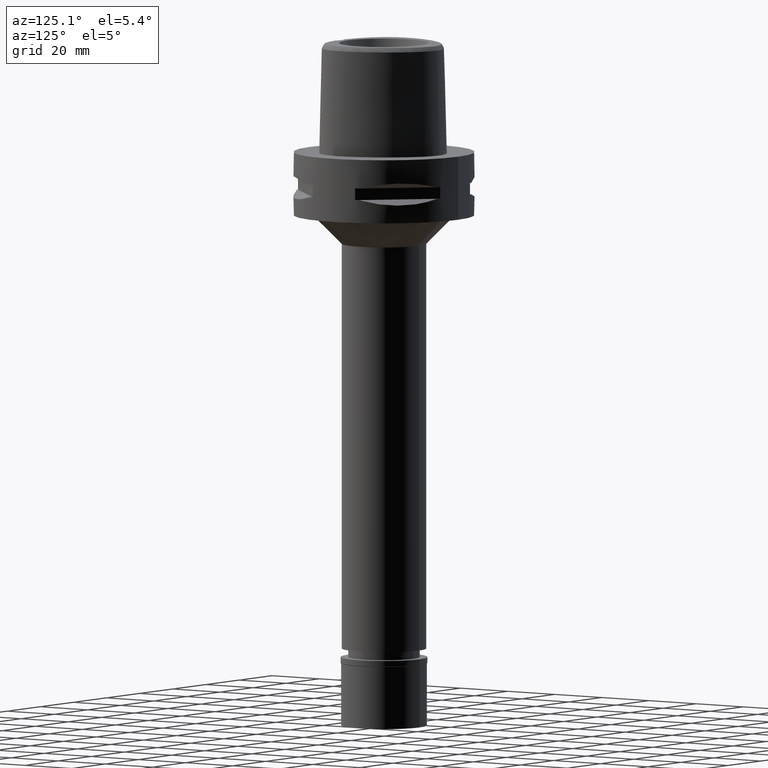
[diagram: clean part render]
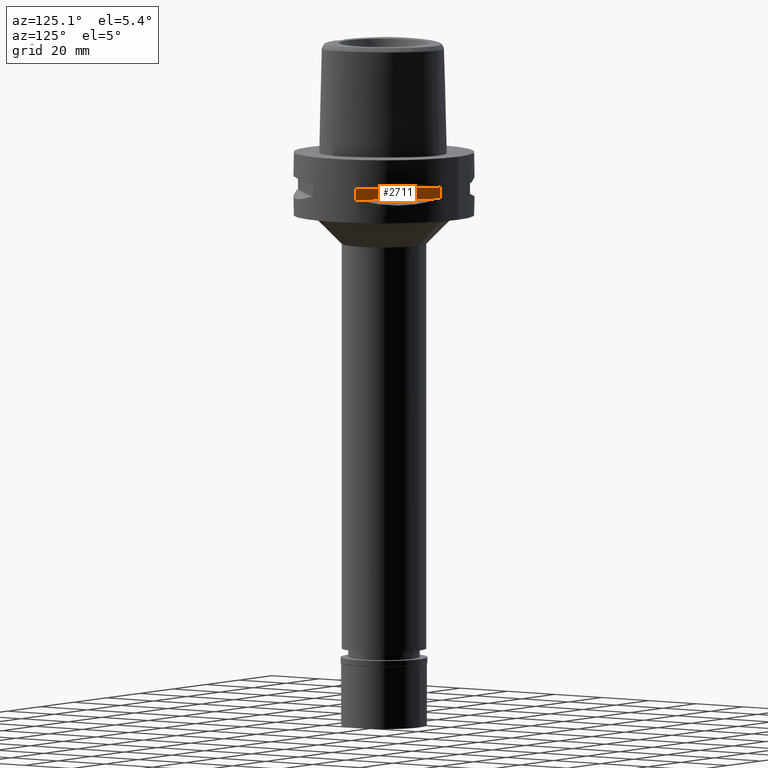
[diagram: same view with one face highlighted and labeled with its STEP entity id]
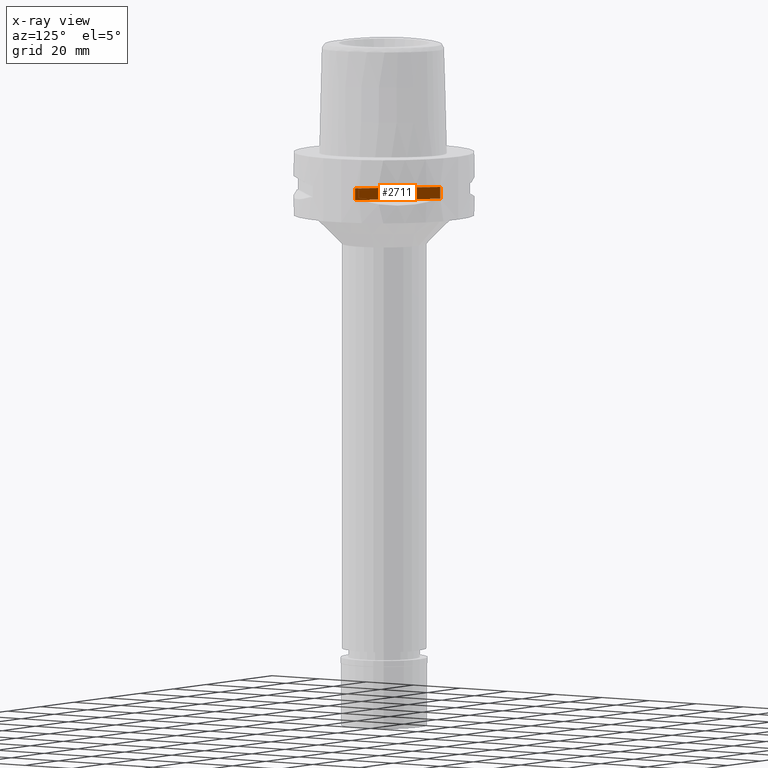
[diagram: x-ray of the same camera — body ghosted, the highlighted face saturated]
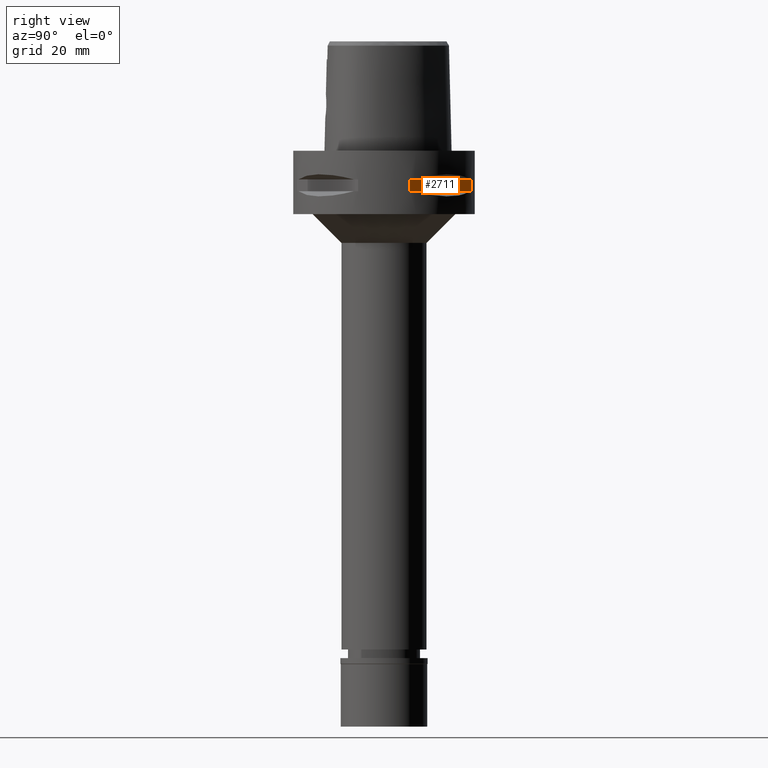
[diagram: same view with one face highlighted and labeled with its STEP entity id]
A machine part, auxiliary view. The second image highlights one B-rep face of the part: STEP entity #2711.
The next image is the same camera in x-ray: the body ghosted, the highlighted face saturated — about 0% of this face is hidden behind the body in this view.
A second angle (right view) of the same face is appended — the face is thin or edge-on in the first view.
In plain terms, the highlighted planar face has unit normal (-0.7071, -0.7071, 0).
Its self-contained STEP definition (entity closure, byte-faithful):
#195 = VERTEX_POINT ( 'NONE', #4689 ) ;
#199 = ORIENTED_EDGE ( 'NONE', *, *, #2220, .T. ) ;
#325 = CARTESIAN_POINT ( 'NONE',  ( 8.981198972019999616, 30.19251670572000279, -14.05000000000000071 ) ) ;
#381 = ORIENTED_EDGE ( 'NONE', *, *, #390, .T. ) ;
#390 = EDGE_CURVE ( 'NONE', #4152, #4382, #3029, .T. ) ;
#516 = DIRECTION ( 'NONE',  ( 0.0000000000000000000, 0.0000000000000000000, 1.000000000000000000 ) ) ;
#715 = VECTOR ( 'NONE', #2133, 1000.000000000000114 ) ;
#727 = DIRECTION ( 'NONE',  ( -0.7071067811865475727, 0.7071067811865475727, 0.0000000000000000000 ) ) ;
#1106 = PLANE ( 'NONE',  #4269 ) ;
#1195 = VECTOR ( 'NONE', #516, 1000.000000000000000 ) ;
#1220 = CARTESIAN_POINT ( 'NONE',  ( 30.19251670572000279, 8.981198972019999616, -9.950000000000001066 ) ) ;
#1340 = CARTESIAN_POINT ( 'NONE',  ( 30.19251670572000279, 8.981198972016999349, -9.950000000000001066 ) ) ;
#1507 = CARTESIAN_POINT ( 'NONE',  ( 30.19251670572000279, 8.981198972016999349, -14.05000000000000071 ) ) ;
#1517 = FACE_OUTER_BOUND ( 'NONE', #2991, .T. ) ;
#1606 = CARTESIAN_POINT ( 'NONE',  ( 8.981198972016999349, 30.19251670572000279, -14.05000000000000071 ) ) ;
#1859 = EDGE_CURVE ( 'NONE', #4572, #195, #3673, .T. ) ;
#1883 = LINE ( 'NONE', #2712, #2787 ) ;
#2133 = DIRECTION ( 'NONE',  ( -0.7071067811865474617, 0.7071067811865474617, 0.0000000000000000000 ) ) ;
#2220 = EDGE_CURVE ( 'NONE', #4382, #195, #2407, .T. ) ;
#2238 = CARTESIAN_POINT ( 'NONE',  ( 7.212489168103000559, 31.96122650962999856, -9.950000000000001066 ) ) ;
#2407 = LINE ( 'NONE', #1606, #1195 ) ;
#2711 = ADVANCED_FACE ( 'NONE', ( #1517 ), #1106, .F. ) ;
#2712 = CARTESIAN_POINT ( 'NONE',  ( 30.19251670572000279, 8.981198972016999349, -9.950000000000001066 ) ) ;
#2787 = VECTOR ( 'NONE', #3843, 1000.000000000000000 ) ;
#2799 = EDGE_CURVE ( 'NONE', #4572, #4152, #1883, .T. ) ;
#2991 = EDGE_LOOP ( 'NONE', ( #3834, #3096, #381, #199 ) ) ;
#3000 = DIRECTION ( 'NONE',  ( -0.7071067811865474617, 0.7071067811865474617, 0.0000000000000000000 ) ) ;
#3029 = LINE ( 'NONE', #1507, #4855 ) ;
#3096 = ORIENTED_EDGE ( 'NONE', *, *, #2799, .T. ) ;
#3225 = CARTESIAN_POINT ( 'NONE',  ( 30.19251670572000279, 8.981198972016999349, -14.05000000000000071 ) ) ;
#3673 = LINE ( 'NONE', #1340, #715 ) ;
#3834 = ORIENTED_EDGE ( 'NONE', *, *, #1859, .F. ) ;
#3843 = DIRECTION ( 'NONE',  ( 0.0000000000000000000, 0.0000000000000000000, -1.000000000000000000 ) ) ;
#4152 = VERTEX_POINT ( 'NONE', #3225 ) ;
#4269 = AXIS2_PLACEMENT_3D ( 'NONE', #2238, #4567, #727 ) ;
#4382 = VERTEX_POINT ( 'NONE', #325 ) ;
#4567 = DIRECTION ( 'NONE',  ( -0.7071067811865475727, -0.7071067811865475727, 0.0000000000000000000 ) ) ;
#4572 = VERTEX_POINT ( 'NONE', #1220 ) ;
#4689 = CARTESIAN_POINT ( 'NONE',  ( 8.981198972016999349, 30.19251670572000279, -9.950000000000001066 ) ) ;
#4855 = VECTOR ( 'NONE', #3000, 1000.000000000000114 ) ;